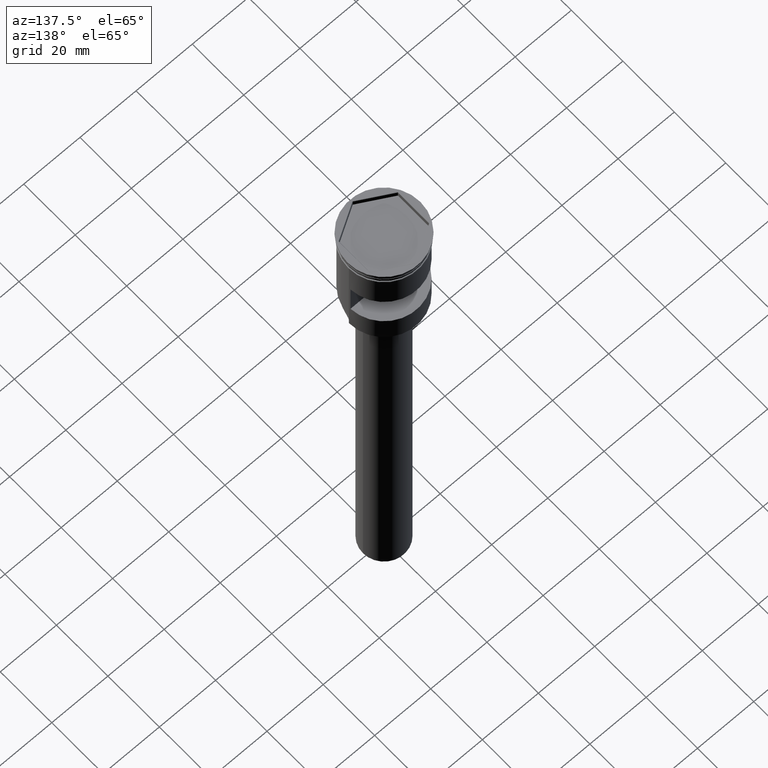
[diagram: clean part render]
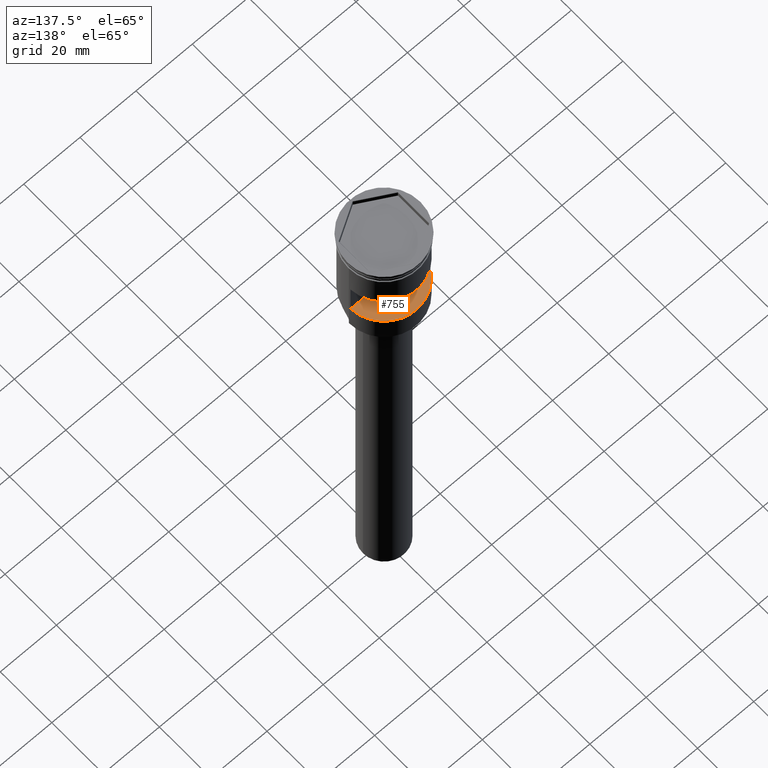
[diagram: same view with one face highlighted and labeled with its STEP entity id]
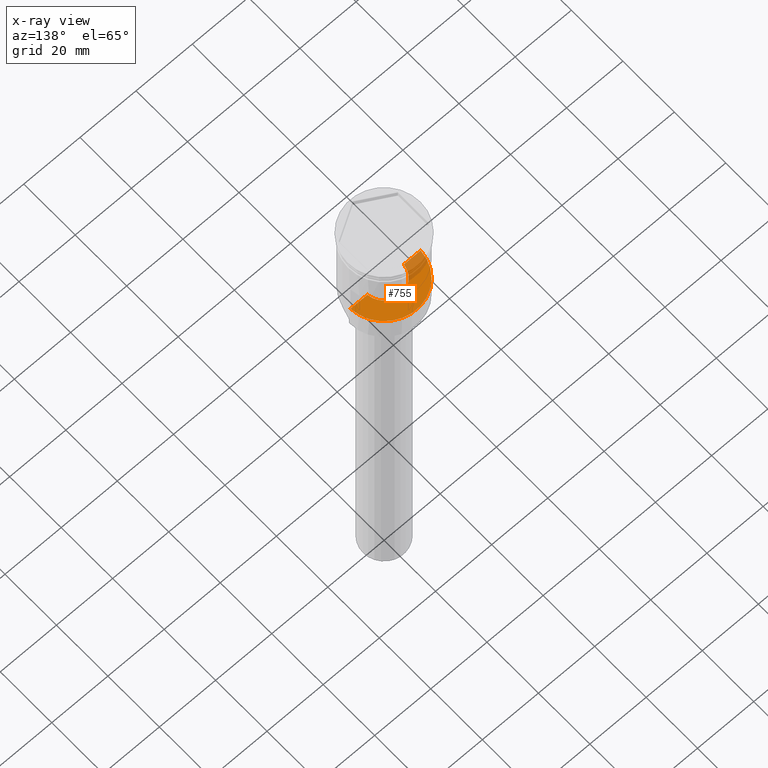
[diagram: x-ray of the same camera — body ghosted, the highlighted face saturated]
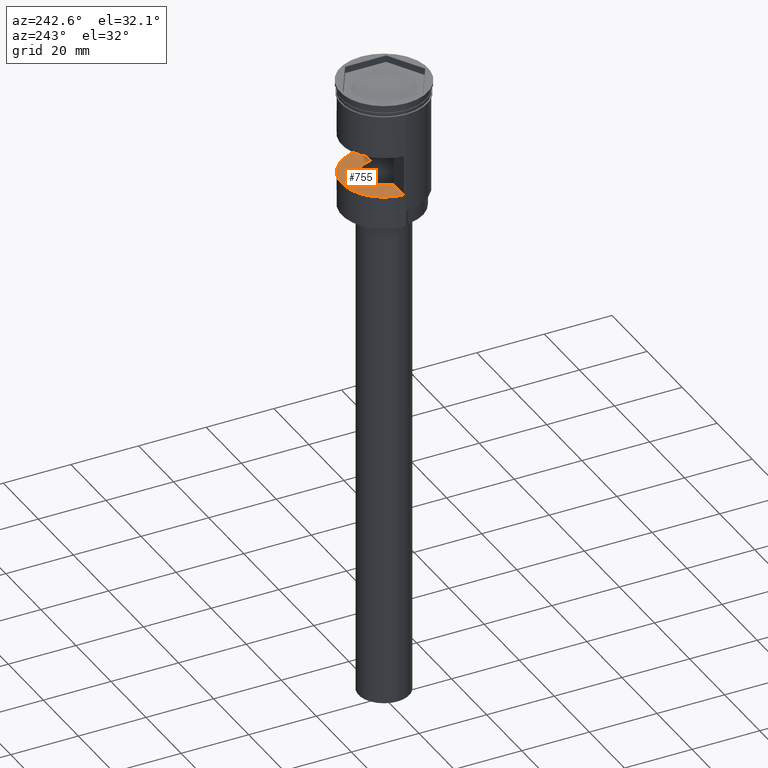
[diagram: same view with one face highlighted and labeled with its STEP entity id]
A machine part, auxiliary view. The second image highlights one B-rep face of the part: STEP entity #755.
The next image is the same camera in x-ray: the body ghosted, the highlighted face saturated — about 16% of this face is hidden behind the body in this view.
A second angle (auxiliary view) of the same face is appended — the face is thin or edge-on in the first view.
In plain terms, the highlighted planar face has unit normal (-0, 0, -1).
Its self-contained STEP definition (entity closure, byte-faithful):
#26 = LINE ( 'NONE', #1012, #597 ) ;
#40 = AXIS2_PLACEMENT_3D ( 'NONE', #1257, #1233, #734 ) ;
#74 = EDGE_CURVE ( 'NONE', #1548, #101, #26, .T. ) ;
#101 = VERTEX_POINT ( 'NONE', #122 ) ;
#102 = EDGE_CURVE ( 'NONE', #320, #268, #609, .T. ) ;
#122 = CARTESIAN_POINT ( 'NONE',  ( 12.48559169603106689, 0.6000000000000003109, -28.49999999999999645 ) ) ;
#209 = PLANE ( 'NONE',  #1072 ) ;
#265 = CIRCLE ( 'NONE', #40, 12.49999999999999645 ) ;
#268 = VERTEX_POINT ( 'NONE', #772 ) ;
#320 = VERTEX_POINT ( 'NONE', #1432 ) ;
#356 = ORIENTED_EDGE ( 'NONE', *, *, #102, .T. ) ;
#374 = ORIENTED_EDGE ( 'NONE', *, *, #74, .T. ) ;
#464 = DIRECTION ( 'NONE',  ( -0.000000000000000000, 0.000000000000000000, -1.000000000000000000 ) ) ;
#471 = EDGE_CURVE ( 'NONE', #101, #320, #265, .T. ) ;
#578 = AXIS2_PLACEMENT_3D ( 'NONE', #923, #1427, #1131 ) ;
#597 = VECTOR ( 'NONE', #994, 1000.000000000000000 ) ;
#609 = LINE ( 'NONE', #1005, #1535 ) ;
#677 = DIRECTION ( 'NONE',  ( -1.000000000000000000, 0.000000000000000000, 0.000000000000000000 ) ) ;
#734 = DIRECTION ( 'NONE',  ( -1.000000000000000000, 0.000000000000000000, 0.000000000000000000 ) ) ;
#755 = ADVANCED_FACE ( 'NONE', ( #1071 ), #209, .F. ) ;
#772 = CARTESIAN_POINT ( 'NONE',  ( -6.472248450113762708, 0.6000000000000003109, -28.49999999999999645 ) ) ;
#799 = ORIENTED_EDGE ( 'NONE', *, *, #471, .T. ) ;
#821 = ORIENTED_EDGE ( 'NONE', *, *, #1489, .T. ) ;
#877 = CARTESIAN_POINT ( 'NONE',  ( 6.472248450113761820, 0.6000000000000003109, -28.49999999999999645 ) ) ;
#923 = CARTESIAN_POINT ( 'NONE',  ( 0.000000000000000000, 0.000000000000000000, -28.49999999999999645 ) ) ;
#941 = CIRCLE ( 'NONE', #578, 6.500000000000000888 ) ;
#994 = DIRECTION ( 'NONE',  ( 1.000000000000000000, -0.000000000000000000, -0.000000000000000000 ) ) ;
#1005 = CARTESIAN_POINT ( 'NONE',  ( -13.00000000000000178, 0.6000000000000003109, -28.49999999999999645 ) ) ;
#1012 = CARTESIAN_POINT ( 'NONE',  ( -13.00000000000000178, 0.6000000000000003109, -28.49999999999999645 ) ) ;
#1071 = FACE_OUTER_BOUND ( 'NONE', #1204, .T. ) ;
#1072 = AXIS2_PLACEMENT_3D ( 'NONE', #1578, #464, #677 ) ;
#1110 = DIRECTION ( 'NONE',  ( 1.000000000000000000, -0.000000000000000000, -0.000000000000000000 ) ) ;
#1131 = DIRECTION ( 'NONE',  ( -1.000000000000000000, 0.000000000000000000, 0.000000000000000000 ) ) ;
#1204 = EDGE_LOOP ( 'NONE', ( #356, #821, #374, #799 ) ) ;
#1233 = DIRECTION ( 'NONE',  ( 0.000000000000000000, 0.000000000000000000, 1.000000000000000000 ) ) ;
#1257 = CARTESIAN_POINT ( 'NONE',  ( 0.000000000000000000, 0.000000000000000000, -28.49999999999999645 ) ) ;
#1427 = DIRECTION ( 'NONE',  ( -0.000000000000000000, -0.000000000000000000, -1.000000000000000000 ) ) ;
#1432 = CARTESIAN_POINT ( 'NONE',  ( -12.48559169603106689, 0.6000000000000003109, -28.49999999999999645 ) ) ;
#1489 = EDGE_CURVE ( 'NONE', #268, #1548, #941, .T. ) ;
#1535 = VECTOR ( 'NONE', #1110, 1000.000000000000000 ) ;
#1548 = VERTEX_POINT ( 'NONE', #877 ) ;
#1578 = CARTESIAN_POINT ( 'NONE',  ( -13.00000000000000178, 12.49999999999999645, -28.49999999999999645 ) ) ;